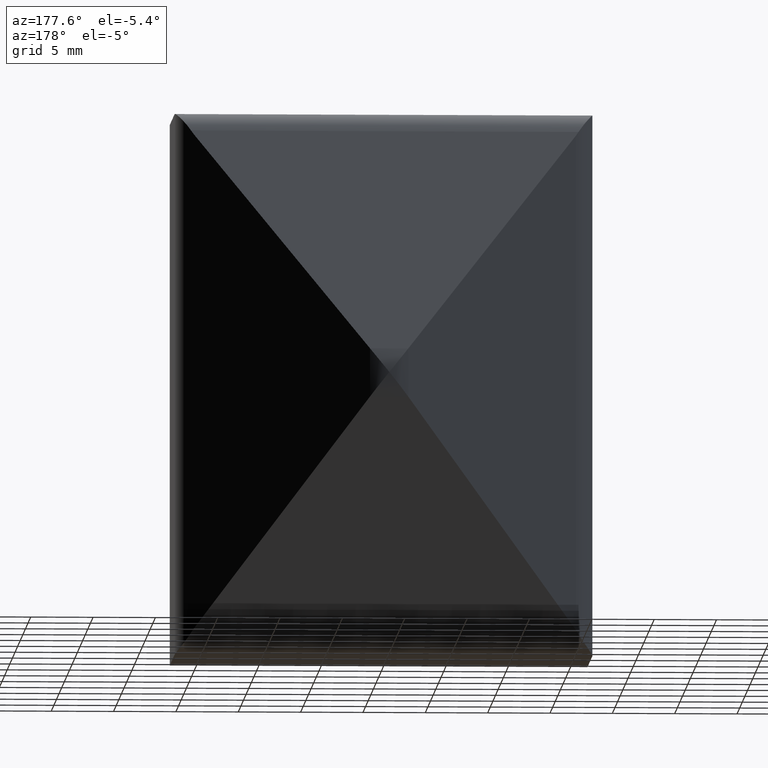
[diagram: clean part render]
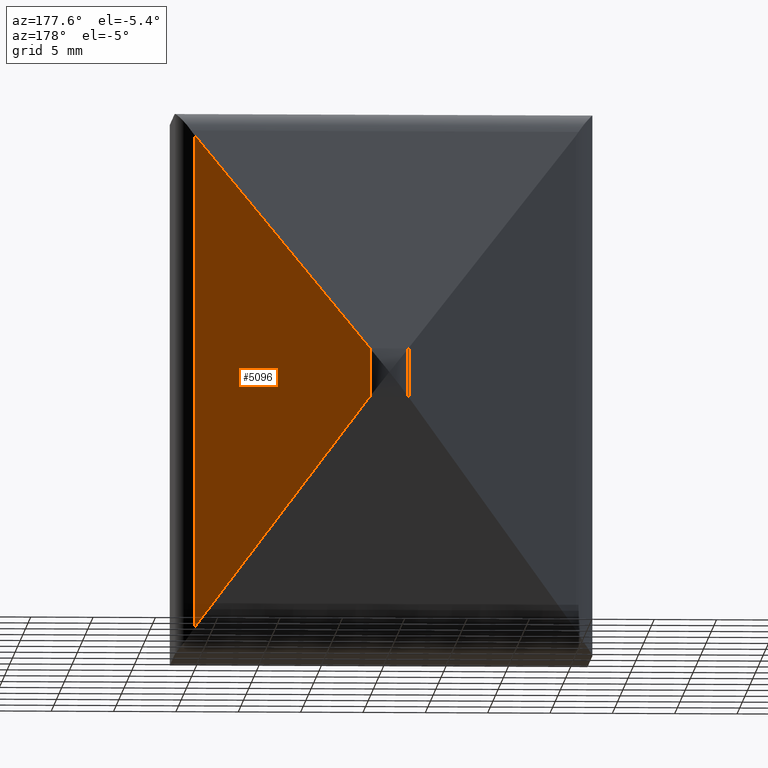
[diagram: same view with one face highlighted and labeled with its STEP entity id]
A machine part, auxiliary view. The second image highlights one B-rep face of the part: STEP entity #5096.
In plain terms, the highlighted planar face has unit normal (-0.5124, -0.8588, 0).
Its self-contained STEP definition (entity closure, byte-faithful):
#728 = VECTOR ( 'NONE', #10278, 1000.000000000000000 ) ;
#1217 = ORIENTED_EDGE ( 'NONE', *, *, #10686, .F. ) ;
#1502 = EDGE_CURVE ( 'NONE', #16912, #11470, #5987, .T. ) ;
#1598 = PLANE ( 'NONE',  #9478 ) ;
#1647 = EDGE_CURVE ( 'NONE', #6051, #11805, #10390, .T. ) ;
#1715 = DIRECTION ( 'NONE',  ( 0.8587713459437058550, -0.5123590297691997808, 0.000000000000000000 ) ) ;
#2146 = CARTESIAN_POINT ( 'NONE',  ( 9.989665510911098778, 15.03334186230743441, 12.94759374860315582 ) ) ;
#3765 = FACE_OUTER_BOUND ( 'NONE', #14637, .T. ) ;
#4492 = CARTESIAN_POINT ( 'NONE',  ( 15.28707708930760667, 11.87280714091108358, 21.75000000000000000 ) ) ;
#4610 = CARTESIAN_POINT ( 'NONE',  ( 1.537077089307597344, 20.07631403783112845, 1.941760045715581251 ) ) ;
#5096 = ADVANCED_FACE ( 'NONE', ( #3765 ), #1598, .F. ) ;
#5771 = CARTESIAN_POINT ( 'NONE',  ( 1.537077089307609112, 20.07631403783112134, 21.75000000000000000 ) ) ;
#5987 = LINE ( 'NONE', #11650, #6618 ) ;
#6051 = VERTEX_POINT ( 'NONE', #4610 ) ;
#6108 = DIRECTION ( 'NONE',  ( 0.5724733910802618508, -0.3415483208749185984, -0.7453985249600304508 ) ) ;
#6618 = VECTOR ( 'NONE', #6108, 1000.000000000000227 ) ;
#7300 = LINE ( 'NONE', #12028, #728 ) ;
#7311 = ORIENTED_EDGE ( 'NONE', *, *, #1647, .T. ) ;
#7316 = EDGE_CURVE ( 'NONE', #11805, #11470, #12665, .T. ) ;
#7411 = DIRECTION ( 'NONE',  ( -0.000000000000000000, -0.000000000000000000, -1.000000000000000000 ) ) ;
#9478 = AXIS2_PLACEMENT_3D ( 'NONE', #5771, #15230, #1715 ) ;
#10057 = ORIENTED_EDGE ( 'NONE', *, *, #1502, .F. ) ;
#10188 = VECTOR ( 'NONE', #10387, 1000.000000000000227 ) ;
#10278 = DIRECTION ( 'NONE',  ( -0.000000000000000000, -0.000000000000000000, -1.000000000000000000 ) ) ;
#10387 = DIRECTION ( 'NONE',  ( 0.5724733910802618508, -0.3415483208749185984, 0.7453985249600304508 ) ) ;
#10390 = LINE ( 'NONE', #2146, #10188 ) ;
#10686 = EDGE_CURVE ( 'NONE', #6051, #16912, #7300, .T. ) ;
#11470 = VERTEX_POINT ( 'NONE', #15775 ) ;
#11650 = CARTESIAN_POINT ( 'NONE',  ( -8.572690215207986242, 26.10799009665660364, 11.22183105544447024 ) ) ;
#11805 = VERTEX_POINT ( 'NONE', #15290 ) ;
#12028 = CARTESIAN_POINT ( 'NONE',  ( 1.537077089307608890, 20.07631403783112489, 21.75000000000000000 ) ) ;
#12244 = VECTOR ( 'NONE', #7411, 1000.000000000000000 ) ;
#12454 = CARTESIAN_POINT ( 'NONE',  ( 1.537077089307583355, 20.07631403783112845, -1.941760045715581251 ) ) ;
#12665 = LINE ( 'NONE', #4492, #12244 ) ;
#14390 = ORIENTED_EDGE ( 'NONE', *, *, #7316, .T. ) ;
#14637 = EDGE_LOOP ( 'NONE', ( #10057, #1217, #7311, #14390 ) ) ;
#15230 = DIRECTION ( 'NONE',  ( -0.5123590297691998918, -0.8587713459437059660, 0.000000000000000000 ) ) ;
#15290 = CARTESIAN_POINT ( 'NONE',  ( 15.28707708930760667, 11.87280714091108358, 19.84517682961194751 ) ) ;
#15775 = CARTESIAN_POINT ( 'NONE',  ( 15.28707708930760845, 11.87280714091108358, -19.84517682961195106 ) ) ;
#16912 = VERTEX_POINT ( 'NONE', #12454 ) ;